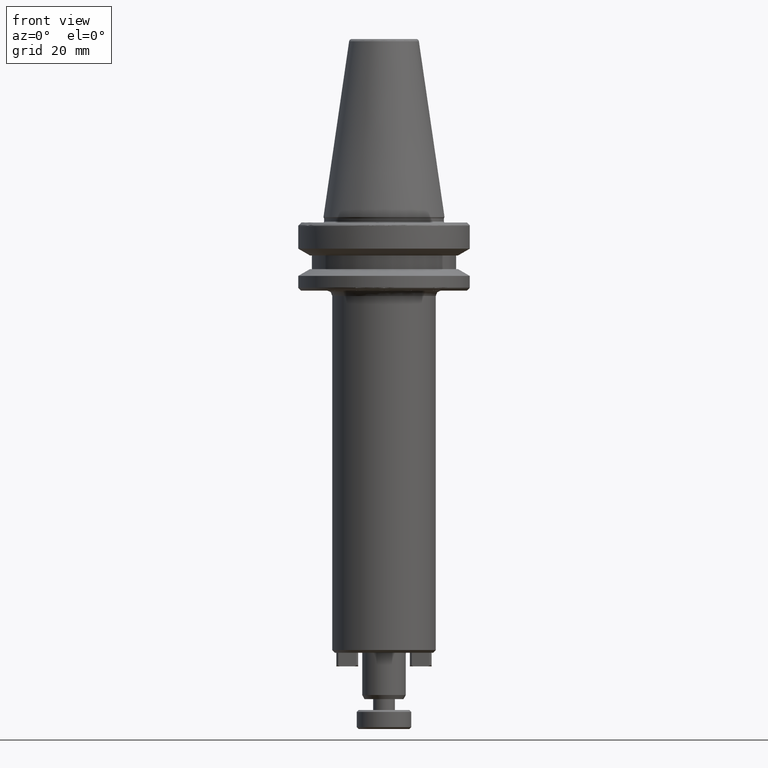
[diagram: clean part render]
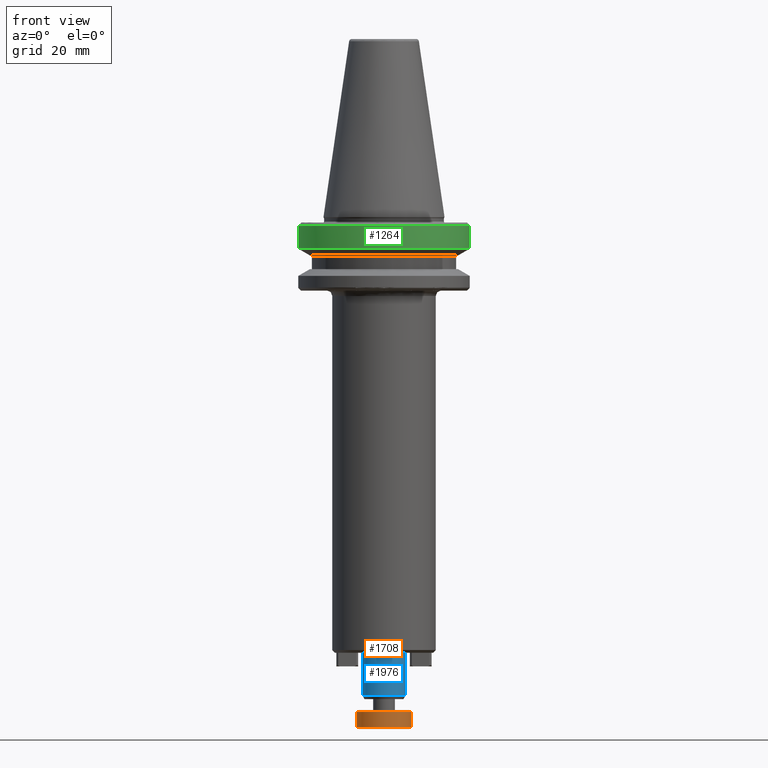
[diagram: same view with three faces highlighted in distinct colors, each labeled with its STEP entity id]
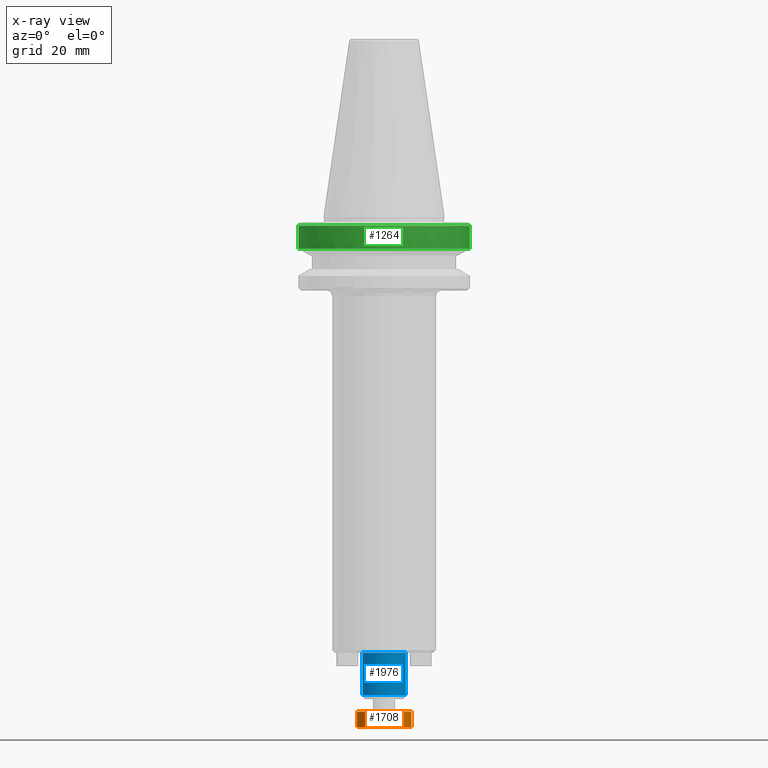
[diagram: x-ray of the same camera — body ghosted, the three highlighted faces saturated]
A machine part, front view with three faces highlighted in distinct colors.
The next image is the same camera in x-ray (body ghosted, the three faces saturated) — at least one of them is partly hidden behind the body in this view.
Their STEP definitions:

[orange] entity #1708 — the highlighted cylindrical surface (edge-blend (fillet) strip) has radius 10 mm, axis along (0, 0, 1).
#36 = VECTOR ( 'NONE', #2495, 1000.000000000000000 ) ;
#79 = ORIENTED_EDGE ( 'NONE', *, *, #700, .T. ) ;
#120 = EDGE_CURVE ( 'NONE', #1716, #2273, #2545, .T. ) ;
#176 = AXIS2_PLACEMENT_3D ( 'NONE', #1050, #2154, #809 ) ;
#202 = ORIENTED_EDGE ( 'NONE', *, *, #2439, .F. ) ;
#207 = EDGE_LOOP ( 'NONE', ( #2286, #79, #2741, #202 ) ) ;
#393 = CIRCLE ( 'NONE', #176, 10.00000000000000000 ) ;
#584 = CARTESIAN_POINT ( 'NONE',  ( 0.0000000000000000000, 0.0000000000000000000, -187.3000000000000100 ) ) ;
#608 = AXIS2_PLACEMENT_3D ( 'NONE', #1586, #1553, #1547 ) ;
#700 = EDGE_CURVE ( 'NONE', #1646, #1716, #2888, .T. ) ;
#809 = DIRECTION ( 'NONE',  ( -1.000000000000000000, 0.0000000000000000000, 0.0000000000000000000 ) ) ;
#843 = LINE ( 'NONE', #3627, #36 ) ;
#1050 = CARTESIAN_POINT ( 'NONE',  ( 0.0000000000000000000, 0.0000000000000000000, -181.7000000000000500 ) ) ;
#1345 = DIRECTION ( 'NONE',  ( 0.0000000000000000000, 0.0000000000000000000, 1.000000000000000000 ) ) ;
#1431 = DIRECTION ( 'NONE',  ( 1.000000000000000000, 0.0000000000000000000, 0.0000000000000000000 ) ) ;
#1509 = CARTESIAN_POINT ( 'NONE',  ( 10.00000000000000000, 0.0000000000000000000, 0.0000000000000000000 ) ) ;
#1531 = VERTEX_POINT ( 'NONE', #1789 ) ;
#1539 = CARTESIAN_POINT ( 'NONE',  ( 10.00000000000000200, 0.0000000000000000000, -187.3000000000000100 ) ) ;
#1547 = DIRECTION ( 'NONE',  ( 1.000000000000000000, 0.0000000000000000000, 0.0000000000000000000 ) ) ;
#1553 = DIRECTION ( 'NONE',  ( 0.0000000000000000000, 0.0000000000000000000, 1.000000000000000000 ) ) ;
#1586 = CARTESIAN_POINT ( 'NONE',  ( 0.0000000000000000000, 0.0000000000000000000, 0.0000000000000000000 ) ) ;
#1646 = VERTEX_POINT ( 'NONE', #1656 ) ;
#1656 = CARTESIAN_POINT ( 'NONE',  ( -10.00000000000000200, 1.224646799147353500E-015, -187.3000000000000100 ) ) ;
#1708 = ADVANCED_FACE ( 'NONE', ( #2142 ), #2053, .T. ) ;
#1716 = VERTEX_POINT ( 'NONE', #1539 ) ;
#1789 = CARTESIAN_POINT ( 'NONE',  ( -10.00000000000000000, 1.224646799147353300E-015, -181.7000000000000500 ) ) ;
#1803 = VECTOR ( 'NONE', #2514, 1000.000000000000000 ) ;
#2053 = CYLINDRICAL_SURFACE ( 'NONE', #608, 10.00000000000000000 ) ;
#2142 = FACE_OUTER_BOUND ( 'NONE', #207, .T. ) ;
#2154 = DIRECTION ( 'NONE',  ( -0.0000000000000000000, -0.0000000000000000000, 1.000000000000000000 ) ) ;
#2182 = AXIS2_PLACEMENT_3D ( 'NONE', #584, #1345, #1431 ) ;
#2273 = VERTEX_POINT ( 'NONE', #2636 ) ;
#2286 = ORIENTED_EDGE ( 'NONE', *, *, #2639, .F. ) ;
#2439 = EDGE_CURVE ( 'NONE', #1531, #2273, #393, .T. ) ;
#2495 = DIRECTION ( 'NONE',  ( 0.0000000000000000000, 0.0000000000000000000, 1.000000000000000000 ) ) ;
#2514 = DIRECTION ( 'NONE',  ( 0.0000000000000000000, 0.0000000000000000000, 1.000000000000000000 ) ) ;
#2545 = LINE ( 'NONE', #1509, #1803 ) ;
#2636 = CARTESIAN_POINT ( 'NONE',  ( 10.00000000000000000, 0.0000000000000000000, -181.7000000000000500 ) ) ;
#2639 = EDGE_CURVE ( 'NONE', #1646, #1531, #843, .T. ) ;
#2741 = ORIENTED_EDGE ( 'NONE', *, *, #120, .T. ) ;
#2888 = CIRCLE ( 'NONE', #2182, 10.00000000000000000 ) ;
#3627 = CARTESIAN_POINT ( 'NONE',  ( -10.00000000000000000, 1.224646799147353300E-015, 0.0000000000000000000 ) ) ;

[blue] entity #1976 — the highlighted cylindrical surface (edge-blend (fillet) strip) has radius 8 mm, axis along (0, 0, 1).
#39 = VERTEX_POINT ( 'NONE', #2474 ) ;
#87 = AXIS2_PLACEMENT_3D ( 'NONE', #1129, #1133, #1130 ) ;
#299 = VECTOR ( 'NONE', #3471, 1000.000000000000000 ) ;
#315 = EDGE_CURVE ( 'NONE', #3417, #39, #3034, .T. ) ;
#424 = AXIS2_PLACEMENT_3D ( 'NONE', #1942, #2633, #2622 ) ;
#646 = ORIENTED_EDGE ( 'NONE', *, *, #3659, .T. ) ;
#837 = CARTESIAN_POINT ( 'NONE',  ( 8.000000000000000000, 0.0000000000000000000, 88.34764052968309000 ) ) ;
#841 = ORIENTED_EDGE ( 'NONE', *, *, #1570, .T. ) ;
#983 = CYLINDRICAL_SURFACE ( 'NONE', #87, 8.000000000000000000 ) ;
#1112 = EDGE_CURVE ( 'NONE', #3417, #1639, #1202, .T. ) ;
#1129 = CARTESIAN_POINT ( 'NONE',  ( 0.0000000000000000000, 0.0000000000000000000, 88.34764052968309000 ) ) ;
#1130 = DIRECTION ( 'NONE',  ( 1.000000000000000000, 0.0000000000000000000, 0.0000000000000000000 ) ) ;
#1133 = DIRECTION ( 'NONE',  ( 0.0000000000000000000, 0.0000000000000000000, 1.000000000000000000 ) ) ;
#1202 = LINE ( 'NONE', #3472, #299 ) ;
#1570 = EDGE_CURVE ( 'NONE', #3649, #1639, #1743, .T. ) ;
#1639 = VERTEX_POINT ( 'NONE', #1744 ) ;
#1743 = CIRCLE ( 'NONE', #2225, 8.000000000000000000 ) ;
#1744 = CARTESIAN_POINT ( 'NONE',  ( -8.000000000000000000, 9.797174393178825700E-016, -160.0000000000000300 ) ) ;
#1748 = DIRECTION ( 'NONE',  ( 1.000000000000000000, 0.0000000000000000000, 0.0000000000000000000 ) ) ;
#1751 = DIRECTION ( 'NONE',  ( -0.0000000000000000000, -0.0000000000000000000, -1.000000000000000000 ) ) ;
#1752 = CARTESIAN_POINT ( 'NONE',  ( 0.0000000000000000000, 0.0000000000000000000, -160.0000000000000300 ) ) ;
#1942 = CARTESIAN_POINT ( 'NONE',  ( 0.0000000000000000000, 0.0000000000000000000, -175.5277568135664700 ) ) ;
#1976 = ADVANCED_FACE ( 'NONE', ( #2465 ), #983, .T. ) ;
#2176 = ORIENTED_EDGE ( 'NONE', *, *, #315, .T. ) ;
#2225 = AXIS2_PLACEMENT_3D ( 'NONE', #1752, #1751, #1748 ) ;
#2465 = FACE_OUTER_BOUND ( 'NONE', #3097, .T. ) ;
#2474 = CARTESIAN_POINT ( 'NONE',  ( 8.000000000000000000, 0.0000000000000000000, -175.5277568135664700 ) ) ;
#2622 = DIRECTION ( 'NONE',  ( 1.000000000000000000, 0.0000000000000000000, 0.0000000000000000000 ) ) ;
#2633 = DIRECTION ( 'NONE',  ( 0.0000000000000000000, 0.0000000000000000000, 1.000000000000000000 ) ) ;
#2727 = CARTESIAN_POINT ( 'NONE',  ( 8.000000000000000000, 0.0000000000000000000, -160.0000000000000300 ) ) ;
#2821 = ORIENTED_EDGE ( 'NONE', *, *, #1112, .F. ) ;
#2939 = DIRECTION ( 'NONE',  ( 0.0000000000000000000, 0.0000000000000000000, 1.000000000000000000 ) ) ;
#3034 = CIRCLE ( 'NONE', #424, 8.000000000000000000 ) ;
#3097 = EDGE_LOOP ( 'NONE', ( #2821, #2176, #646, #841 ) ) ;
#3412 = LINE ( 'NONE', #837, #3495 ) ;
#3417 = VERTEX_POINT ( 'NONE', #3610 ) ;
#3471 = DIRECTION ( 'NONE',  ( 0.0000000000000000000, 0.0000000000000000000, 1.000000000000000000 ) ) ;
#3472 = CARTESIAN_POINT ( 'NONE',  ( -8.000000000000000000, 9.797174393178825700E-016, 88.34764052968309000 ) ) ;
#3495 = VECTOR ( 'NONE', #2939, 1000.000000000000000 ) ;
#3610 = CARTESIAN_POINT ( 'NONE',  ( -8.000000000000000000, 9.797174393178825700E-016, -175.5277568135664700 ) ) ;
#3649 = VERTEX_POINT ( 'NONE', #2727 ) ;
#3659 = EDGE_CURVE ( 'NONE', #39, #3649, #3412, .T. ) ;

[green] entity #1264 — the highlighted cylindrical surface (partial cylindrical patch) has radius 31.5 mm, axis along (0, 0, 1).
#26 = FACE_OUTER_BOUND ( 'NONE', #2793, .T. ) ;
#38 = CARTESIAN_POINT ( 'NONE',  ( -31.50000000000000000, 3.857637417314162700E-015, -11.59985799368323700 ) ) ;
#41 = CYLINDRICAL_SURFACE ( 'NONE', #791, 31.50000000000000000 ) ;
#146 = DIRECTION ( 'NONE',  ( 0.0000000000000000000, 0.0000000000000000000, 1.000000000000000000 ) ) ;
#270 = AXIS2_PLACEMENT_3D ( 'NONE', #3469, #3466, #3463 ) ;
#336 = EDGE_CURVE ( 'NONE', #2338, #2411, #2270, .T. ) ;
#353 = ORIENTED_EDGE ( 'NONE', *, *, #1097, .T. ) ;
#382 = VECTOR ( 'NONE', #1146, 1000.000000000000000 ) ;
#405 = VECTOR ( 'NONE', #146, 1000.000000000000000 ) ;
#531 = CARTESIAN_POINT ( 'NONE',  ( 31.50000000000000000, 0.0000000000000000000, 69.75694866325665100 ) ) ;
#541 = EDGE_CURVE ( 'NONE', #1157, #2338, #3240, .T. ) ;
#547 = CIRCLE ( 'NONE', #3022, 31.50000000000000000 ) ;
#791 = AXIS2_PLACEMENT_3D ( 'NONE', #2874, #2811, #2819 ) ;
#1087 = DIRECTION ( 'NONE',  ( 1.000000000000000000, 0.0000000000000000000, 0.0000000000000000000 ) ) ;
#1097 = EDGE_CURVE ( 'NONE', #2411, #3047, #2609, .T. ) ;
#1098 = ORIENTED_EDGE ( 'NONE', *, *, #3106, .F. ) ;
#1146 = DIRECTION ( 'NONE',  ( 0.0000000000000000000, 0.0000000000000000000, 1.000000000000000000 ) ) ;
#1157 = VERTEX_POINT ( 'NONE', #3427 ) ;
#1264 = ADVANCED_FACE ( 'NONE', ( #26 ), #41, .T. ) ;
#1325 = EDGE_CURVE ( 'NONE', #3047, #2462, #2839, .T. ) ;
#1395 = ORIENTED_EDGE ( 'NONE', *, *, #1325, .T. ) ;
#1423 = CARTESIAN_POINT ( 'NONE',  ( 8.599437155675833100, -30.30345987846242700, -3.165685424949243700 ) ) ;
#1480 = DIRECTION ( 'NONE',  ( -0.0000000000000000000, -0.0000000000000000000, -1.000000000000000000 ) ) ;
#1502 = AXIS2_PLACEMENT_3D ( 'NONE', #2202, #2198, #2196 ) ;
#1516 = DIRECTION ( 'NONE',  ( -0.0000000000000000000, -0.0000000000000000000, -1.000000000000000000 ) ) ;
#1551 = CARTESIAN_POINT ( 'NONE',  ( -8.717453373228725200, -30.26972095486813400, -3.165685424949243700 ) ) ;
#1838 = CARTESIAN_POINT ( 'NONE',  ( 0.0000000000000000000, 0.0000000000000000000, -3.165685424949243700 ) ) ;
#1905 = CARTESIAN_POINT ( 'NONE',  ( 31.50000000000000000, 0.0000000000000000000, -3.165685424949243700 ) ) ;
#2196 = DIRECTION ( 'NONE',  ( 1.000000000000000000, 0.0000000000000000000, 0.0000000000000000000 ) ) ;
#2198 = DIRECTION ( 'NONE',  ( -0.0000000000000000000, -0.0000000000000000000, -1.000000000000000000 ) ) ;
#2202 = CARTESIAN_POINT ( 'NONE',  ( 0.0000000000000000000, 0.0000000000000000000, -3.165685424949243700 ) ) ;
#2270 = CIRCLE ( 'NONE', #2946, 31.50000000000000000 ) ;
#2294 = VERTEX_POINT ( 'NONE', #38 ) ;
#2338 = VERTEX_POINT ( 'NONE', #1905 ) ;
#2411 = VERTEX_POINT ( 'NONE', #1423 ) ;
#2462 = VERTEX_POINT ( 'NONE', #3003 ) ;
#2609 = CIRCLE ( 'NONE', #270, 31.50000000000000000 ) ;
#2630 = CARTESIAN_POINT ( 'NONE',  ( 0.0000000000000000000, 0.0000000000000000000, -11.59985799368323700 ) ) ;
#2706 = LINE ( 'NONE', #3259, #405 ) ;
#2749 = ORIENTED_EDGE ( 'NONE', *, *, #336, .T. ) ;
#2789 = EDGE_CURVE ( 'NONE', #1157, #2294, #547, .T. ) ;
#2793 = EDGE_LOOP ( 'NONE', ( #1098, #3582, #3561, #2749, #353, #1395 ) ) ;
#2811 = DIRECTION ( 'NONE',  ( 0.0000000000000000000, 0.0000000000000000000, 1.000000000000000000 ) ) ;
#2819 = DIRECTION ( 'NONE',  ( 1.000000000000000000, 0.0000000000000000000, 0.0000000000000000000 ) ) ;
#2839 = CIRCLE ( 'NONE', #1502, 31.50000000000000000 ) ;
#2874 = CARTESIAN_POINT ( 'NONE',  ( 0.0000000000000000000, 0.0000000000000000000, 69.75694866325665100 ) ) ;
#2946 = AXIS2_PLACEMENT_3D ( 'NONE', #1838, #1480, #1087 ) ;
#3003 = CARTESIAN_POINT ( 'NONE',  ( -31.50000000000000000, 3.857637417314162700E-015, -3.165685424949243700 ) ) ;
#3022 = AXIS2_PLACEMENT_3D ( 'NONE', #2630, #1516, #3182 ) ;
#3047 = VERTEX_POINT ( 'NONE', #1551 ) ;
#3106 = EDGE_CURVE ( 'NONE', #2294, #2462, #2706, .T. ) ;
#3182 = DIRECTION ( 'NONE',  ( 1.000000000000000000, 0.0000000000000000000, 5.507058653894625900E-017 ) ) ;
#3240 = LINE ( 'NONE', #531, #382 ) ;
#3259 = CARTESIAN_POINT ( 'NONE',  ( -31.50000000000000000, 3.857637417314162700E-015, 69.75694866325665100 ) ) ;
#3427 = CARTESIAN_POINT ( 'NONE',  ( 31.50000000000000000, 0.0000000000000000000, -11.59985799368323700 ) ) ;
#3463 = DIRECTION ( 'NONE',  ( -1.000000000000000000, 0.0000000000000000000, 0.0000000000000000000 ) ) ;
#3466 = DIRECTION ( 'NONE',  ( -0.0000000000000000000, -0.0000000000000000000, -1.000000000000000000 ) ) ;
#3469 = CARTESIAN_POINT ( 'NONE',  ( 0.0000000000000000000, 0.0000000000000000000, -3.165685424949243700 ) ) ;
#3561 = ORIENTED_EDGE ( 'NONE', *, *, #541, .T. ) ;
#3582 = ORIENTED_EDGE ( 'NONE', *, *, #2789, .F. ) ;